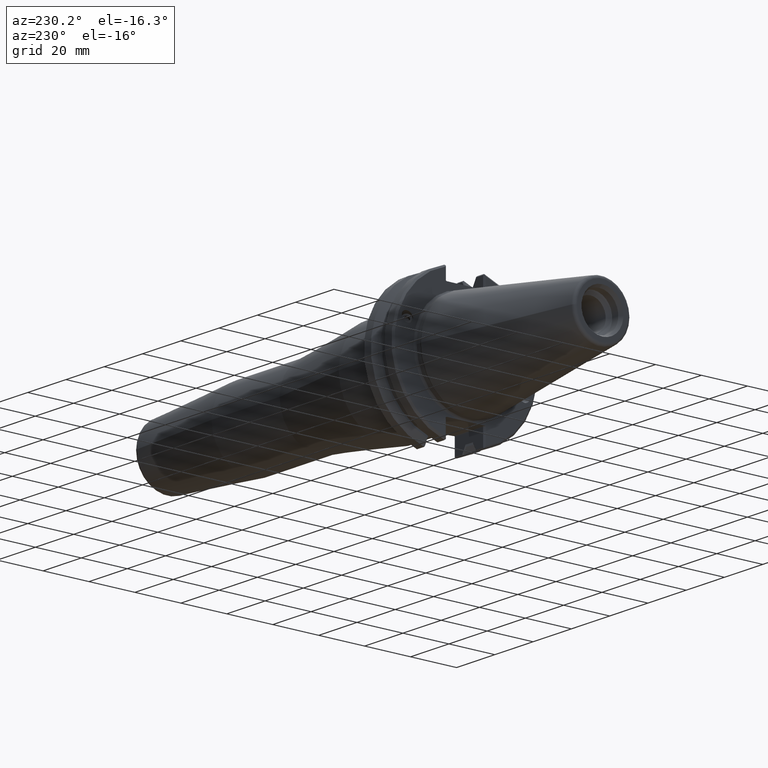
[diagram: clean part render]
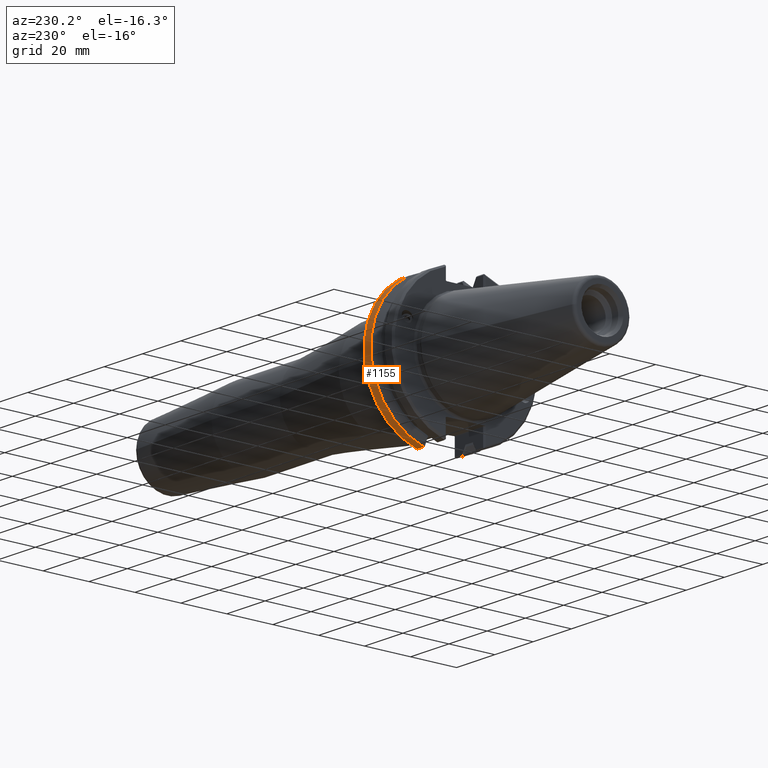
[diagram: same view with one face highlighted and labeled with its STEP entity id]
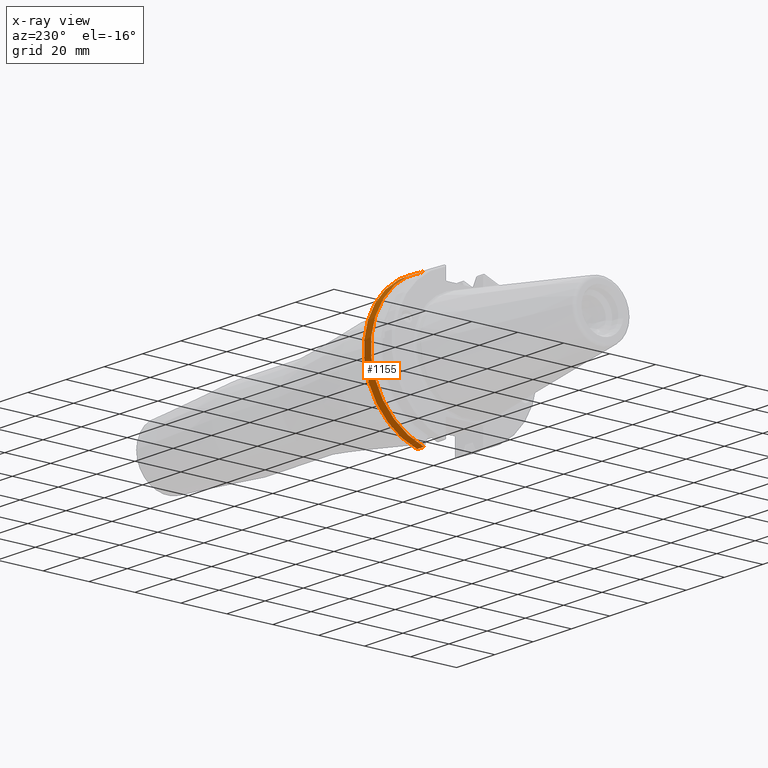
[diagram: x-ray of the same camera — body ghosted, the highlighted face saturated]
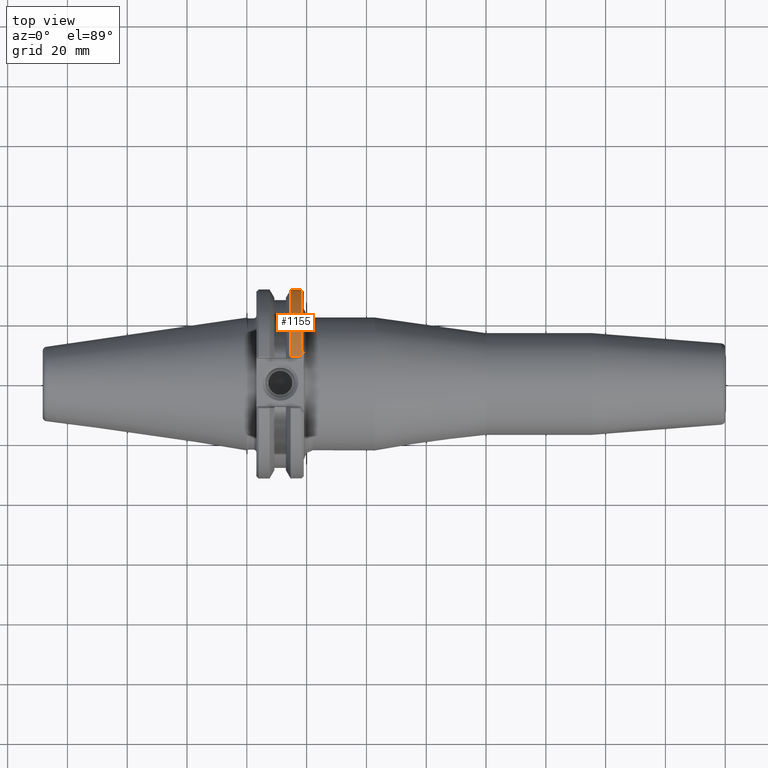
[diagram: same view with one face highlighted and labeled with its STEP entity id]
A machine part, auxiliary view. The second image highlights one B-rep face of the part: STEP entity #1155.
The next image is the same camera in x-ray: the body ghosted, the highlighted face saturated — about 0% of this face is hidden behind the body in this view.
A second angle (top view) of the same face is appended — the face is thin or edge-on in the first view.
In plain terms, the highlighted cylindrical surface (partial cylindrical patch) has radius 31.75 mm, axis along (1, 0, 0).
Its self-contained STEP definition (entity closure, byte-faithful):
#1080=CARTESIAN_POINT('',(17.598186489013742,8.626554713373386,30.555605930453670));
#1081=VERTEX_POINT('',#1080);
#1096=CARTESIAN_POINT('',(18.288000000000004,9.998443772442627,30.134591786339222));
#1097=VERTEX_POINT('',#1096);
#1105=CARTESIAN_POINT('',(43.968146643601600,0.0,0.0));
#1106=DIRECTION('',(-0.724847792720335,0.158740357627321,-0.670370924376057));
#1107=DIRECTION('',(0.688909048705602,0.167021463947951,-0.705342578604344));
#1108=AXIS2_PLACEMENT_3D('',#1105,#1106,#1107);
#1109=ELLIPSE('',#1108,43.802299350106402,31.750000000000004);
#1110=EDGE_CURVE('',#1081,#1097,#1109,.T.);
#1115=CARTESIAN_POINT('',(11.112500000000001,0.0,0.0));
#1116=DIRECTION('',(1.0,0.0,0.0));
#1117=DIRECTION('',(-1.624514E-013,1.0,0.0));
#1118=AXIS2_PLACEMENT_3D('',#1115,#1116,#1117);
#1119=CYLINDRICAL_SURFACE('',#1118,31.750000000000000);
#1120=ORIENTED_EDGE('',*,*,#1110,.T.);
#1121=CARTESIAN_POINT('',(18.288000000000004,8.626554713373395,-30.555605930453666));
#1122=VERTEX_POINT('',#1121);
#1123=CARTESIAN_POINT('',(18.288000000000004,0.0,0.0));
#1124=DIRECTION('',(1.0,1.624514E-013,0.0));
#1125=DIRECTION('',(-1.624514E-013,1.0,0.0));
#1126=AXIS2_PLACEMENT_3D('',#1123,#1124,#1125);
#1127=CIRCLE('',#1126,31.750000000000000);
#1128=EDGE_CURVE('',#1122,#1097,#1127,.T.);
#1129=ORIENTED_EDGE('',*,*,#1128,.F.);
#1130=CARTESIAN_POINT('',(14.660216354556951,8.626554713373395,-30.555605930453666));
#1131=VERTEX_POINT('',#1130);
#1132=CARTESIAN_POINT('',(14.660216354556951,8.626554713373395,-30.555605930453666));
#1133=DIRECTION('',(1.0,0.0,0.0));
#1134=VECTOR('',#1133,3.627783645443053);
#1135=LINE('',#1132,#1134);
#1136=EDGE_CURVE('',#1131,#1122,#1135,.T.);
#1137=ORIENTED_EDGE('',*,*,#1136,.F.);
#1138=CARTESIAN_POINT('',(14.660216354556951,8.626554713373386,30.555605930453666));
#1139=VERTEX_POINT('',#1138);
#1140=CARTESIAN_POINT('',(14.660216354556951,0.0,0.0));
#1141=DIRECTION('',(1.0,1.624514E-013,0.0));
#1142=DIRECTION('',(-1.624514E-013,1.0,0.0));
#1143=AXIS2_PLACEMENT_3D('',#1140,#1141,#1142);
#1144=CIRCLE('',#1143,31.750000000000000);
#1145=EDGE_CURVE('',#1131,#1139,#1144,.T.);
#1146=ORIENTED_EDGE('',*,*,#1145,.T.);
#1147=CARTESIAN_POINT('',(17.598186489013742,8.626554713373386,30.555605930453670));
#1148=DIRECTION('',(-1.0,0.0,0.0));
#1149=VECTOR('',#1148,2.937970134456791);
#1150=LINE('',#1147,#1149);
#1151=EDGE_CURVE('',#1081,#1139,#1150,.T.);
#1152=ORIENTED_EDGE('',*,*,#1151,.F.);
#1153=EDGE_LOOP('',(#1120,#1129,#1137,#1146,#1152));
#1154=FACE_OUTER_BOUND('',#1153,.T.);
#1155=ADVANCED_FACE('',(#1154),#1119,.T.);